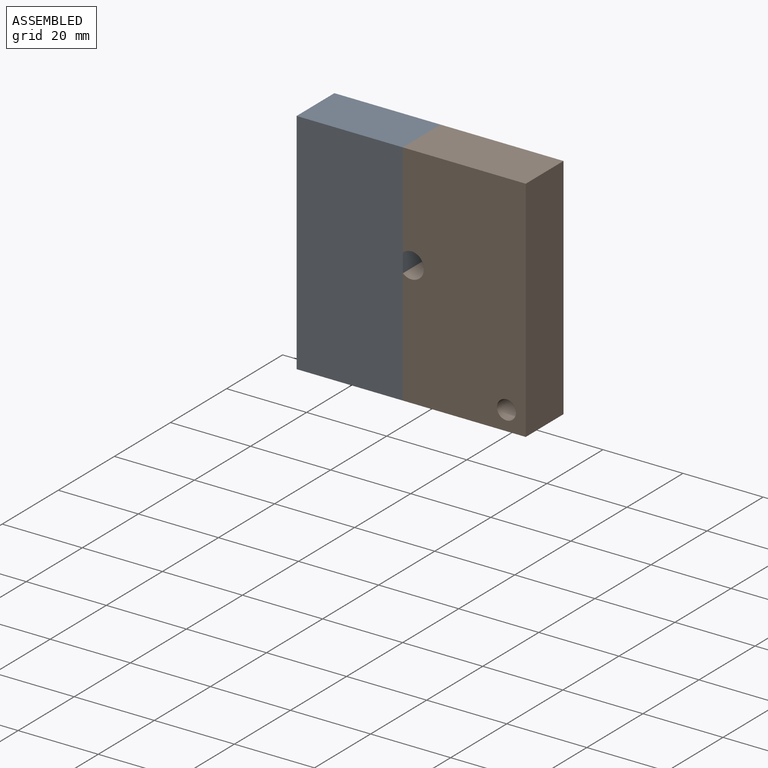
[diagram: assembled view]
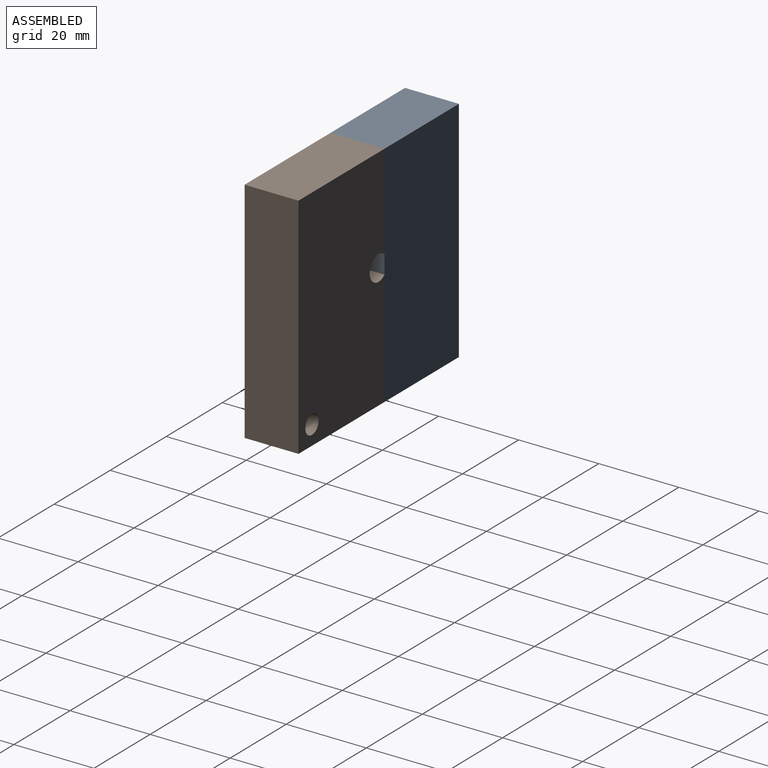
[diagram: assembled view, second angle]
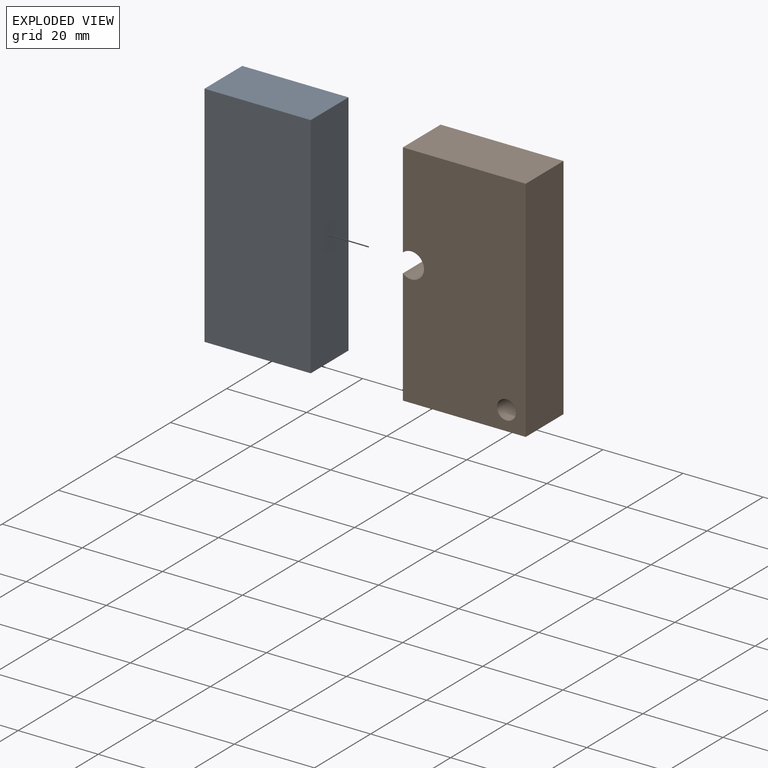
[diagram: exploded view]
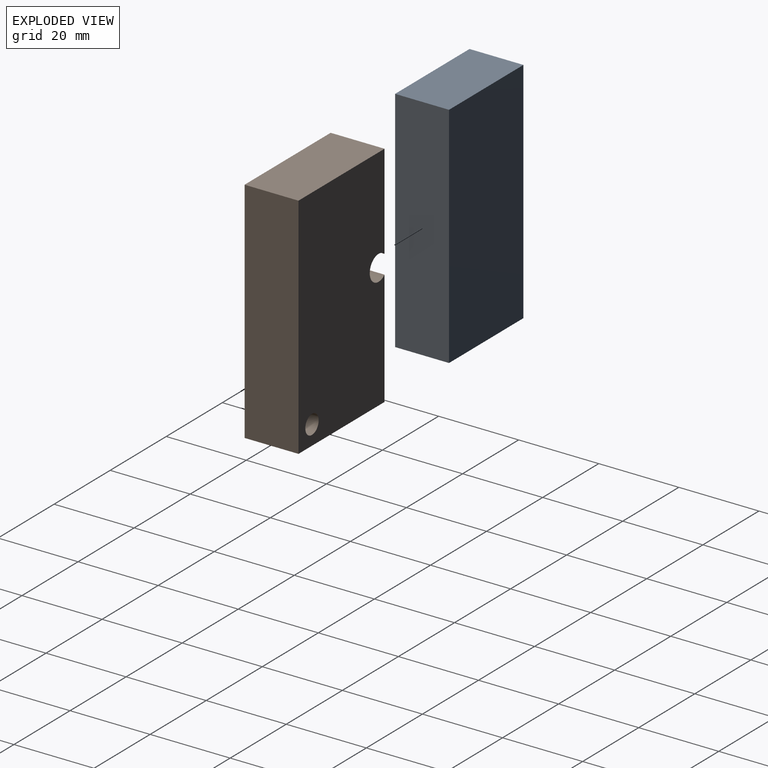
[diagram: exploded view, second angle]
ASSEMBLY  parts=2 mates=3
PART A: 6 faces, bbox 26.5x13.5x57.2 mm
  f0: plane 57.15x13.46mm, normal (-1,0,0), area 769.4mm2, adj f1,f3,f4,f5
  f1: plane 26.53x13.46mm, normal (0,0,-1), area 357.2mm2, adj f0,f2,f4,f5
  f2: plane 57.15x13.46mm, normal (1,0,0), area 769.4mm2, adj f1,f3,f4,f5
  f3: plane 26.53x13.46mm, normal (0,0,1), area 357.2mm2, adj f0,f2,f4,f5
  f4: plane 57.15x26.53mm, normal (0,-1,0), area 1516.2mm2, adj f0,f1,f2,f3
  f5: plane 57.15x26.53mm, normal (0,1,0), area 1516.2mm2, adj f0,f1,f2,f3
PART B: 9 faces, bbox 30.7x13.5x57.2 mm
  f0: plane 30.69x13.46mm, normal (0,0,-1), area 413.2mm2, adj f3,f4,f5,f7
  f1: plane 30.69x13.46mm, normal (0,0,1), area 413.2mm2, adj f3,f4,f5,f8
  f2: cylinder r=3.16mm len=13.46mm, axis (0,1,0), area 196.2mm2, adj f3,f4,f7,f8
  f3: plane 57.15x30.69mm, normal (0,-1,0), area 1708.2mm2, adj f0,f1,f2,f5,f6,f7,f8
  f4: plane 57.15x30.69mm, normal (0,1,0), area 1708.2mm2, adj f0,f1,f2,f5,f6,f7,f8
  f5: plane 57.15x13.46mm, normal (1,0,0), area 769.4mm2, adj f0,f1,f3,f4
  f6: cylinder r=2.38mm len=13.46mm, axis (0,1,0), area 201.4mm2, adj f3,f4
  f7: plane 28.73x13.46mm, normal (-1,0,0), area 386.7mm2, adj f0,f2,f3,f4
  f8: plane 23.72x13.46mm, normal (-1,0,0), area 319.4mm2, adj f1,f2,f3,f4
PLACE A t=(-18.54,22.14,-38.85)mm
PLACE B t=(-18.47,22.14,-38.85)mm
MATE planar A.f3 <-> B.f1  axis (0,0,1) through (-5.28,15.41,18.3)mm
MATE planar B.f7 <-> A.f2  axis (-1,0,0) through (7.99,15.41,-24.49)mm
MATE planar B.f3 <-> A.f4  axis (0,-1,0) through (23.44,8.68,-10.07)mm
